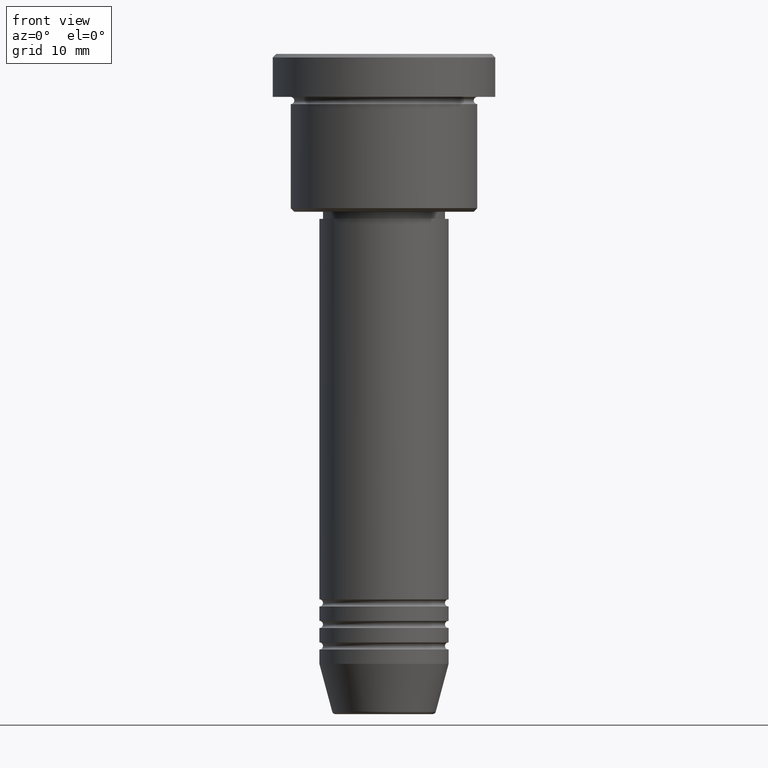
[diagram: clean part render]
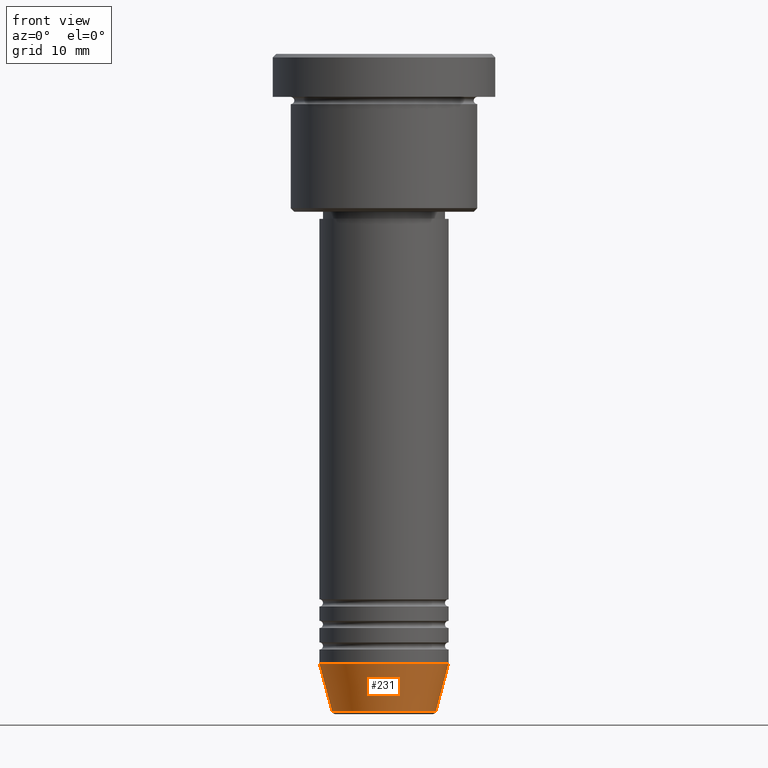
[diagram: same view with one face highlighted and labeled with its STEP entity id]
A machine part, front view. The second image highlights one B-rep face of the part: STEP entity #231.
In plain terms, the highlighted conical surface has half-angle 15 deg.
Its self-contained STEP definition (entity closure, byte-faithful):
#42 = CIRCLE ( 'NONE', #710, 7.223655072137188604 ) ;
#92 = DIRECTION ( 'NONE',  ( 0.2588190451025213501, 0.000000000000000000, 0.9659258262890680902 ) ) ;
#105 = VERTEX_POINT ( 'NONE', #902 ) ;
#144 = FACE_OUTER_BOUND ( 'NONE', #1092, .T. ) ;
#156 = AXIS2_PLACEMENT_3D ( 'NONE', #814, #268, #449 ) ;
#181 = CARTESIAN_POINT ( 'NONE',  ( -9.000000000000000000, 1.102182119232617714E-15, -84.99999999999998579 ) ) ;
#198 = ORIENTED_EDGE ( 'NONE', *, *, #735, .F. ) ;
#231 = ADVANCED_FACE ( 'NONE', ( #144 ), #540, .T. ) ;
#268 = DIRECTION ( 'NONE',  ( -0.000000000000000000, -0.000000000000000000, 1.000000000000000000 ) ) ;
#414 = ORIENTED_EDGE ( 'NONE', *, *, #1088, .T. ) ;
#418 = EDGE_CURVE ( 'NONE', #904, #105, #42, .T. ) ;
#419 = DIRECTION ( 'NONE',  ( 1.000000000000000000, 0.000000000000000000, 0.000000000000000000 ) ) ;
#424 = CIRCLE ( 'NONE', #156, 9.000000000000000000 ) ;
#446 = VECTOR ( 'NONE', #838, 1000.000000000000000 ) ;
#449 = DIRECTION ( 'NONE',  ( 1.000000000000000000, 0.000000000000000000, 0.000000000000000000 ) ) ;
#522 = DIRECTION ( 'NONE',  ( -0.000000000000000000, -0.000000000000000000, 1.000000000000000000 ) ) ;
#540 = CONICAL_SURFACE ( 'NONE', #694, 9.000000000000000000, 0.2617993877991500740 ) ;
#605 = VERTEX_POINT ( 'NONE', #1174 ) ;
#635 = LINE ( 'NONE', #1012, #754 ) ;
#694 = AXIS2_PLACEMENT_3D ( 'NONE', #1072, #522, #419 ) ;
#704 = VERTEX_POINT ( 'NONE', #933 ) ;
#710 = AXIS2_PLACEMENT_3D ( 'NONE', #874, #1157, #975 ) ;
#732 = ORIENTED_EDGE ( 'NONE', *, *, #1160, .F. ) ;
#735 = EDGE_CURVE ( 'NONE', #904, #704, #1007, .T. ) ;
#754 = VECTOR ( 'NONE', #92, 1000.000000000000000 ) ;
#781 = CARTESIAN_POINT ( 'NONE',  ( -7.223655072137189492, 9.934123627281765110E-16, -91.62940952255125637 ) ) ;
#814 = CARTESIAN_POINT ( 'NONE',  ( 0.000000000000000000, 0.000000000000000000, -84.99999999999998579 ) ) ;
#832 = ORIENTED_EDGE ( 'NONE', *, *, #418, .T. ) ;
#838 = DIRECTION ( 'NONE',  ( -0.2588190451025213501, 3.169619151431772337E-17, 0.9659258262890680902 ) ) ;
#874 = CARTESIAN_POINT ( 'NONE',  ( 0.000000000000000000, 0.000000000000000000, -91.62940952255125637 ) ) ;
#902 = CARTESIAN_POINT ( 'NONE',  ( 7.223655072137188604, 0.000000000000000000, -91.62940952255125637 ) ) ;
#904 = VERTEX_POINT ( 'NONE', #781 ) ;
#933 = CARTESIAN_POINT ( 'NONE',  ( -9.000000000000000000, 1.102182119232617714E-15, -84.99999999999998579 ) ) ;
#975 = DIRECTION ( 'NONE',  ( 1.000000000000000000, 0.000000000000000000, 0.000000000000000000 ) ) ;
#1007 = LINE ( 'NONE', #181, #446 ) ;
#1012 = CARTESIAN_POINT ( 'NONE',  ( 9.000000000000000000, 0.000000000000000000, -84.99999999999998579 ) ) ;
#1072 = CARTESIAN_POINT ( 'NONE',  ( 0.000000000000000000, 0.000000000000000000, -84.99999999999998579 ) ) ;
#1088 = EDGE_CURVE ( 'NONE', #105, #605, #635, .T. ) ;
#1092 = EDGE_LOOP ( 'NONE', ( #198, #832, #414, #732 ) ) ;
#1157 = DIRECTION ( 'NONE',  ( -0.000000000000000000, -0.000000000000000000, 1.000000000000000000 ) ) ;
#1160 = EDGE_CURVE ( 'NONE', #704, #605, #424, .T. ) ;
#1174 = CARTESIAN_POINT ( 'NONE',  ( 9.000000000000000000, 0.000000000000000000, -84.99999999999998579 ) ) ;